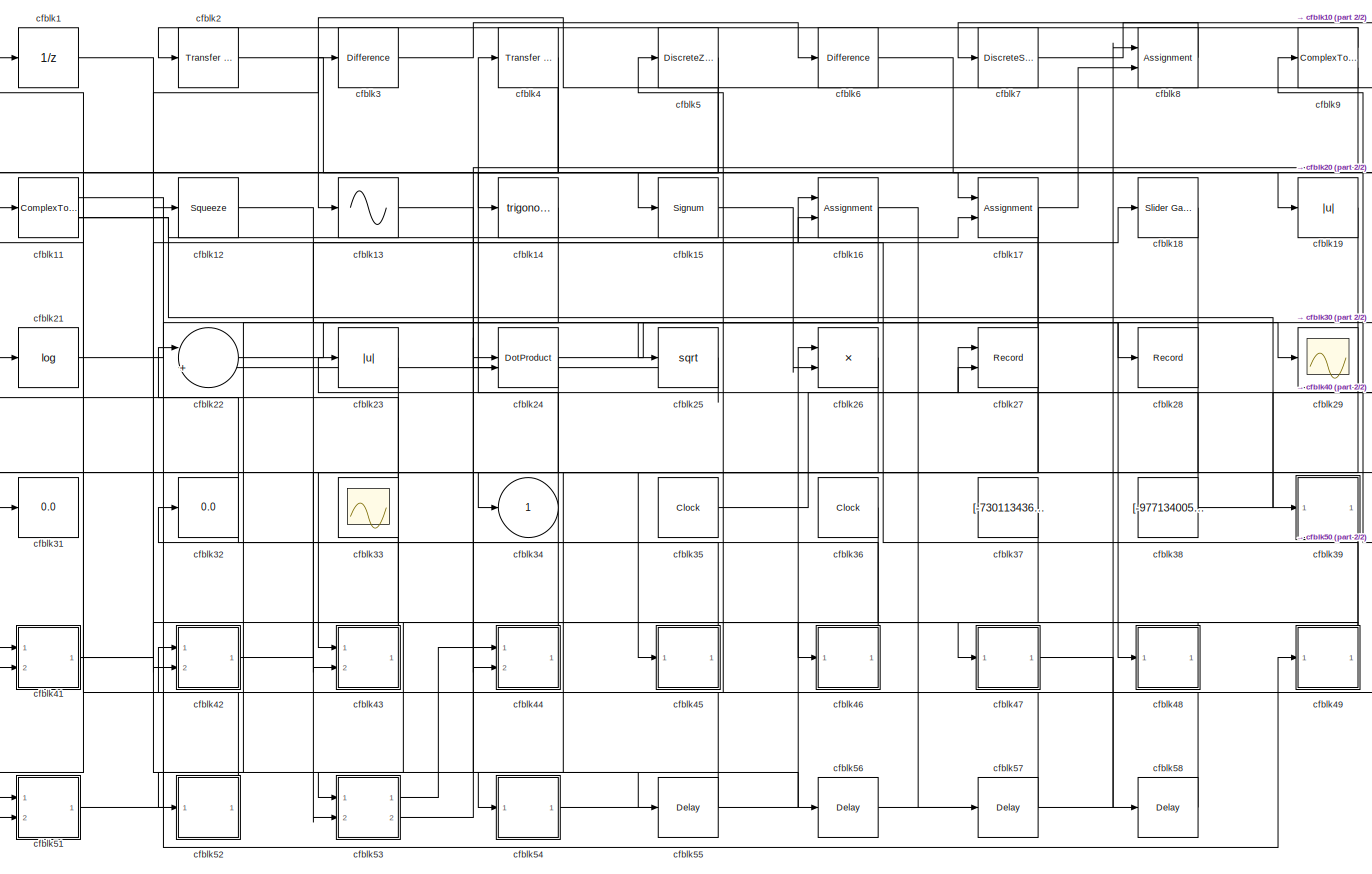
[diagram: root canvas - part 1/2, most of the canvas]
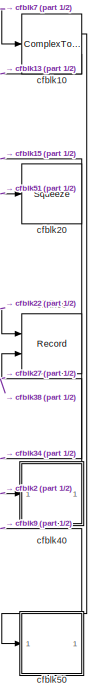
[diagram: root canvas - part 2/2, right side, full height]
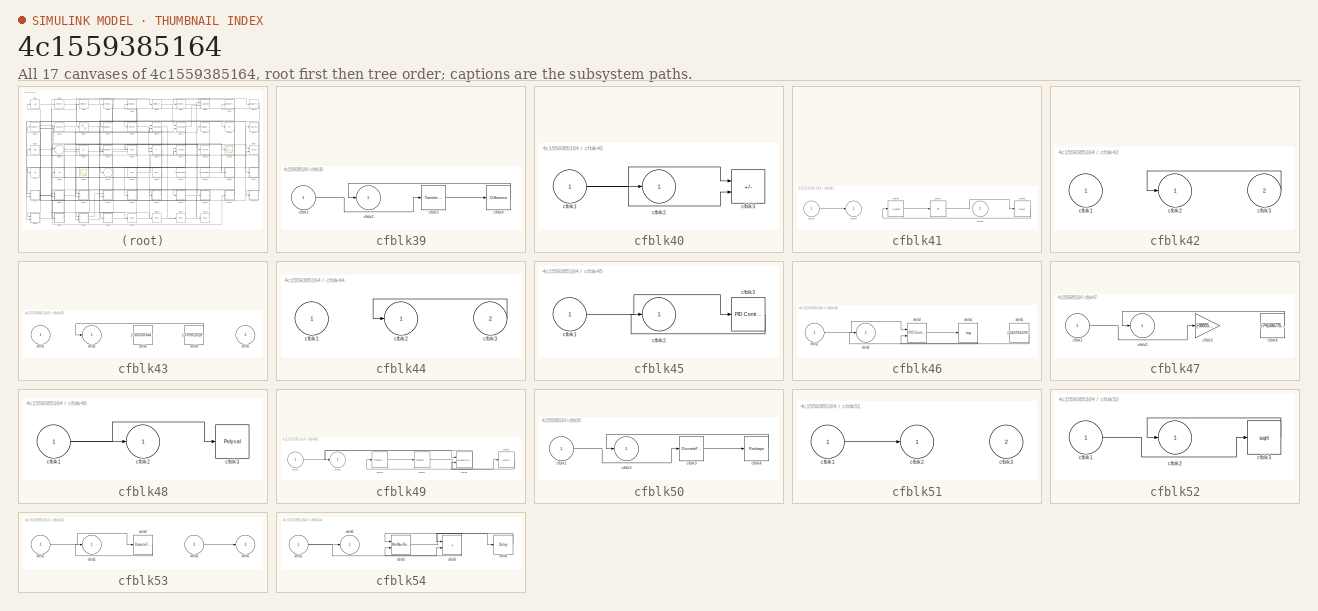
[diagram: thumbnail index - all 17 canvases of the model, root first then tree order]
MODEL slx_4c1559385164
KIND model
CONFIG AbsTol = auto
CONFIG EnableMultiTasking = off
CONFIG FixedStep = auto
CONFIG MaxStep = auto
CONFIG MinStep = auto
CONFIG RelTol = 1e-3
CONFIG SampleTimeConstraint = Unconstrained
CONFIG SolverName = VariableStepAuto
CONFIG StartTime = 0.0
CONFIG StopTime = 10.0
BLOCK [UnitDelay] cfblk1
  HasFrameUpgradeWarning = on
BLOCK [ComplexToMagnitudeAngle] cfblk10
  Ports = [1, 2]
BLOCK [ComplexToRealImag] cfblk11
  Ports = [1, 2]
BLOCK [Squeeze] cfblk12
BLOCK [Sin] cfblk13
  Ports = [1, 1]
  SampleTime = 0
  TimeSource = Use external signal
BLOCK [Trigonometry] cfblk14
  Ports = [1, 1]
BLOCK [Signum] cfblk15
BLOCK [Assignment] cfblk16
  DiagnosticForDimensions = Warning
  IndexOptions = Index vector (dialog)
  Indices = 1
  OutputSizes = 1
  Ports = [2, 1]
BLOCK [Assignment] cfblk17
  DiagnosticForDimensions = Warning
  IndexOptions = Index vector (dialog)
  Indices = 1
  OutputSizes = 1
  Ports = [2, 1]
BLOCK [Reference] cfblk18  REF=simulink/Math
Operations/Slider
Gain
  Ports = [1, 1]
  SourceBlock = simulink/Math\nOperations/Slider\nGain
  SourceProductBaseCode = SL
  SourceType = Slider Gain
BLOCK [Abs] cfblk19
  SaturateOnIntegerOverflow = off
BLOCK [Reference] cfblk2  REF=simulink/Discrete/Transfer Fcn
Real Zero
  Ports = [1, 1]
  SourceBlock = simulink/Discrete/Transfer Fcn\nReal Zero
  SourceProductBaseCode = SL
  SourceType = Transfer Fcn Real Zero
BLOCK [Squeeze] cfblk20
BLOCK [Math] cfblk21
  Operator = log
  Ports = [1, 1]
BLOCK [Sum] cfblk22
  Inputs = |++
  Ports = [2, 1]
BLOCK [Abs] cfblk23
  SaturateOnIntegerOverflow = off
BLOCK [DotProduct] cfblk24
  OutDataTypeStr = Inherit: Inherit via internal rule
BLOCK [Sqrt] cfblk25
BLOCK [Product] cfblk26
  Inputs = **
  Ports = [2, 1]
BLOCK [Record] cfblk27
  CompatibilityTag = XY
  FileSettingsInternal = {"entries":[{"content":{"excelSettings":{"content":{},"type":"Streamout.ExcelSettings"}},"type":"Streamout.FileSettingStorage","uuid":"5f2e5e33-2e7e-4f52-84ca-bc2f10127a33"}],"packageUris":["http://schema.mathworks.com/mf0/streamout_blocks/R2020a"],"version":"1.0"}
  Layout = [1 1]
  Ports = [2]
  SignalsInternal = {"entries":[{"content":{"signals":[{"content":{"blockPath":["sampleModel143/cfblk27"],"channel":[],"dimensions":[1],"domain":"sampleModel143/cfblk27","lineColor":"#a2142f","plots":[1],"port":1,"sid":[""],"signalID":5139,"signalName":"cfblk40"},"type":"RecordBlkView.Signal","uuid":"a825d7f5-e084-43ae-92ed-3d345ba5eced"},{"content":{"blockPath":["sampleModel143/cfblk27"],"channel":[],"dimensions":[1...<+383ch>
  VisualizationBindings = {"xyplotplugin":{"info":[{"series":[{"bindingParametersList":[{"parameter":"X-Axis","signalID":5139,"signalName":"cfblk40"},{"parameter":"Y-Axis","signalID":5143,"signalName":"cfblk35"}],"seriesID":55494}],"subplotID":1}]}}
BLOCK [Record] cfblk28
  FileSettingsInternal = {"entries":[{"content":{"excelSettings":{"content":{},"type":"Streamout.ExcelSettings"}},"type":"Streamout.FileSettingStorage","uuid":"592b955c-6c1a-4010-a795-5c568d8f64ab"}],"packageUris":["http://schema.mathworks.com/mf0/streamout_blocks/R2020a"],"version":"1.0"}
  Ports = [1]
  SignalsInternal = {"entries":[{"content":{"signals":[{"content":{"blockPath":["sampleModel143/cfblk28"],"channel":[],"dimensions":[1],"domain":"sampleModel143/cfblk28","lineColor":"#139fff","plots":[1],"port":1,"sid":[""],"signalID":5147,"signalName":"cfblk15"},"type":"RecordBlkView.Signal","uuid":"adb308f3-d4ff-469a-8984-c33c15bf6920"}]},"type":"RecordBlkView.InputSignals","uuid":"c3a7635e-0893-4d51-8ba1-9111f7d57...<+97ch>
  VisualizationBindings = {"sparklinesplugin":{"info":[{"bindingParametersList":[],"subplotID":1}]}}
BLOCK [Scope] cfblk29
  Floating = off
  NumInputPorts = 1
  Ports = [1]
BLOCK [Reference] cfblk3  REF=simulink/Discrete/Difference
  Ports = [1, 1]
  SourceBlock = simulink/Discrete/Difference
  SourceProductBaseCode = SL
  SourceType = Difference
BLOCK [Record] cfblk30
  CompatibilityTag = XY
  FileSettingsInternal = {"entries":[{"content":{"excelSettings":{"content":{},"type":"Streamout.ExcelSettings"}},"type":"Streamout.FileSettingStorage","uuid":"dd589362-2def-43e8-98ce-1fe01ff604ab"}],"packageUris":["http://schema.mathworks.com/mf0/streamout_blocks/R2020a"],"version":"1.0"}
  Layout = [1 1]
  Ports = [2]
  SignalsInternal = {"entries":[{"content":{"signals":[{"content":{"blockPath":["sampleModel143/cfblk30"],"channel":[],"dimensions":[1],"domain":"sampleModel143/cfblk30","lineColor":"#a2142f","plots":[1],"port":1,"sid":[""],"signalID":5151,"signalName":"cfblk22"},"type":"RecordBlkView.Signal","uuid":"c16fe243-c98b-4217-890a-991c832bc302"},{"content":{"blockPath":["sampleModel143/cfblk30"],"channel":[],"dimensions":[1...<+383ch>
  VisualizationBindings = {"xyplotplugin":{"info":[{"series":[{"bindingParametersList":[{"parameter":"X-Axis","signalID":5151,"signalName":"cfblk22"},{"parameter":"Y-Axis","signalID":5155,"signalName":"cfblk38"}],"seriesID":62739}],"subplotID":1}]}}
BLOCK [Display] cfblk31
  Decimation = 1
  Ports = [1]
BLOCK [Display] cfblk32
  Decimation = 1
  Ports = [1]
BLOCK [Scope] cfblk33
  Floating = on
  NumInputPorts = 1
  Ports = []
BLOCK [Outport] cfblk34
BLOCK [Clock] cfblk35
BLOCK [Clock] cfblk36
BLOCK [Constant] cfblk37
  SampleTime = 1
  Value = [-730113436.085616]
BLOCK [Constant] cfblk38
  SampleTime = 1
  Value = [-977134005.325001]
BLOCK [SubSystem] cfblk39
  Ports = [1, 1]
  RequestExecContextInheritance = off
BLOCK [Inport] cfblk39/cfblk1
BLOCK [Outport] cfblk39/cfblk2
BLOCK [Reference] cfblk39/cfblk3  REF=simulink/Discrete/Transfer Fcn
Lead or Lag
  Ports = [1, 1]
  SourceBlock = simulink/Discrete/Transfer Fcn\nLead or Lag
  SourceProductBaseCode = SL
  SourceType = Lead or Lag Compensator
BLOCK [Reference] cfblk39/cfblk4  REF=simulink/Discrete/Difference
  Ports = [1, 1]
  SourceBlock = simulink/Discrete/Difference
  SourceProductBaseCode = SL
  SourceType = Difference
BLOCK [Reference] cfblk4  REF=simulink/Discrete/Transfer Fcn
Real Zero
  Ports = [1, 1]
  SourceBlock = simulink/Discrete/Transfer Fcn\nReal Zero
  SourceProductBaseCode = SL
  SourceType = Transfer Fcn Real Zero
BLOCK [SubSystem] cfblk40
  Ports = [1, 1]
  RequestExecContextInheritance = off
BLOCK [Inport] cfblk40/cfblk1
BLOCK [Outport] cfblk40/cfblk2
BLOCK [Sum] cfblk40/cfblk3
  IconShape = rectangular
  Inputs = -+
  Ports = [2, 1]
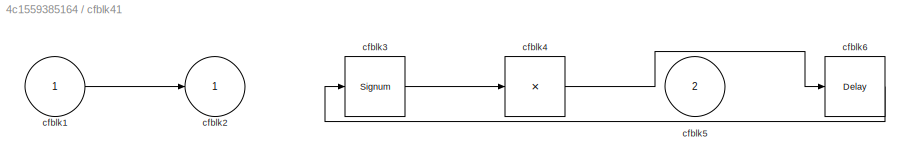
BLOCK [SubSystem] cfblk41
  Ports = [2, 1]
  RequestExecContextInheritance = off
BLOCK [Inport] cfblk41/cfblk1
BLOCK [Outport] cfblk41/cfblk2
BLOCK [Signum] cfblk41/cfblk3
BLOCK [Product] cfblk41/cfblk4
  Inputs = *
  Ports = [1, 1]
BLOCK [Inport] cfblk41/cfblk5
  Port = 2
BLOCK [Delay] cfblk41/cfblk6
  InputPortMap = u0
  Ports = [1, 1]
  SampleTime = 1
BLOCK [SubSystem] cfblk42
  Ports = [2, 1]
  RequestExecContextInheritance = off
BLOCK [Inport] cfblk42/cfblk1
BLOCK [Outport] cfblk42/cfblk2
BLOCK [Inport] cfblk42/cfblk3
  Port = 2
BLOCK [SubSystem] cfblk43
  Ports = [2, 1]
  RequestExecContextInheritance = off
BLOCK [Inport] cfblk43/cfblk1
BLOCK [Outport] cfblk43/cfblk2
BLOCK [Constant] cfblk43/cfblk3
  SampleTime = 1
  Value = [-166500344.595289]
BLOCK [Constant] cfblk43/cfblk4
  SampleTime = 1
  Value = [-370952628.731076]
BLOCK [Inport] cfblk43/cfblk5
  Port = 2
BLOCK [SubSystem] cfblk44
  Ports = [2, 1]
  RequestExecContextInheritance = off
BLOCK [Inport] cfblk44/cfblk1
BLOCK [Outport] cfblk44/cfblk2
BLOCK [Inport] cfblk44/cfblk3
  Port = 2
BLOCK [SubSystem] cfblk45
  Ports = [1, 1]
  RequestExecContextInheritance = off
BLOCK [Inport] cfblk45/cfblk1
BLOCK [Outport] cfblk45/cfblk2
BLOCK [Reference] cfblk45/cfblk3  REF=slpidlib/PID Controller
  Ports = [1, 1]
  SourceBlock = slpidlib/PID Controller
  SourceProductBaseCode = SL
  SourceType = PID 1dof
BLOCK [SubSystem] cfblk46
  Ports = [1, 1]
  RequestExecContextInheritance = off
BLOCK [Inport] cfblk46/cfblk1
BLOCK [Outport] cfblk46/cfblk2
BLOCK [Reference] cfblk46/cfblk3  REF=slpidlib/PID Controller (2DOF)
  Ports = [2, 1]
  SourceBlock = slpidlib/PID Controller (2DOF)
  SourceProductBaseCode = SL
  SourceType = PID 2dof
BLOCK [Math] cfblk46/cfblk4
  Operator = log
  Ports = [1, 1]
BLOCK [Constant] cfblk46/cfblk5
  SampleTime = 1
  Value = [-543761478.223902]
BLOCK [SubSystem] cfblk47
  Ports = [1, 1]
  RequestExecContextInheritance = off
BLOCK [Inport] cfblk47/cfblk1
BLOCK [Outport] cfblk47/cfblk2
BLOCK [Gain] cfblk47/cfblk3
  Gain = [-888552525.683789]
BLOCK [Constant] cfblk47/cfblk4
  SampleTime = 1
  Value = [-741096776.320350]
BLOCK [SubSystem] cfblk48
  Ports = [1, 1]
  RequestExecContextInheritance = off
BLOCK [Inport] cfblk48/cfblk1
BLOCK [Outport] cfblk48/cfblk2
BLOCK [Polyval] cfblk48/cfblk3
  Coefs = [ +2.081618890e-019, -1.441693666e-014, +4.719686976e-010, -8.536869453e-006, +1.621573104e-001, -8.087801117e+001 ]
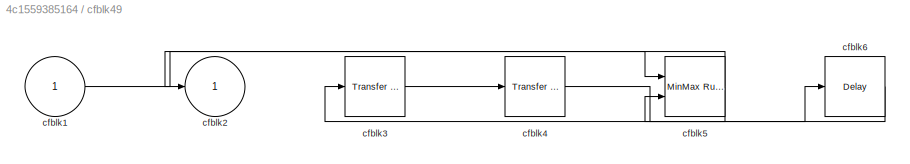
BLOCK [SubSystem] cfblk49
  Ports = [1, 1]
  RequestExecContextInheritance = off
BLOCK [Inport] cfblk49/cfblk1
BLOCK [Outport] cfblk49/cfblk2
BLOCK [Reference] cfblk49/cfblk3  REF=simulink/Discrete/Transfer Fcn
Lead or Lag
  Ports = [1, 1]
  SourceBlock = simulink/Discrete/Transfer Fcn\nLead or Lag
  SourceProductBaseCode = SL
  SourceType = Lead or Lag Compensator
BLOCK [Reference] cfblk49/cfblk4  REF=simulink/Discrete/Transfer Fcn
Real Zero
  Ports = [1, 1]
  SourceBlock = simulink/Discrete/Transfer Fcn\nReal Zero
  SourceProductBaseCode = SL
  SourceType = Transfer Fcn Real Zero
BLOCK [Reference] cfblk49/cfblk5  REF=simulink/Math
Operations/MinMax
Running
Resettable
  Ports = [2, 1]
  SourceBlock = simulink/Math\nOperations/MinMax\nRunning\nResettable
  SourceProductBaseCode = SL
  SourceType = MinMax Running Resettable
BLOCK [Delay] cfblk49/cfblk6
  InputPortMap = u0
  Ports = [1, 1]
  SampleTime = 1
BLOCK [DiscreteZeroPole] cfblk5
  Gain = 1
  Poles = [0 0.5]
BLOCK [SubSystem] cfblk50
  Ports = [1, 1]
  RequestExecContextInheritance = off
BLOCK [Inport] cfblk50/cfblk1
BLOCK [Outport] cfblk50/cfblk2
BLOCK [DiscreteFilter] cfblk50/cfblk3
  InputPortMap = u0
  Ports = [1, 1]
  SampleTime = 1
BLOCK [Reshape] cfblk50/cfblk4
  Ports = [1, 1]
BLOCK [SubSystem] cfblk51
  Ports = [2, 1]
  RequestExecContextInheritance = off
BLOCK [Inport] cfblk51/cfblk1
BLOCK [Outport] cfblk51/cfblk2
BLOCK [Inport] cfblk51/cfblk3
  Port = 2
BLOCK [SubSystem] cfblk52
  Ports = [1, 1]
  RequestExecContextInheritance = off
BLOCK [Inport] cfblk52/cfblk1
BLOCK [Outport] cfblk52/cfblk2
BLOCK [Sqrt] cfblk52/cfblk3
BLOCK [SubSystem] cfblk53
  Ports = [2, 2]
  RequestExecContextInheritance = off
BLOCK [Inport] cfblk53/cfblk1
BLOCK [Outport] cfblk53/cfblk2
BLOCK [DiscreteFir] cfblk53/cfblk3
  InputPortMap = u0
  OutputPortMap = o0
  Ports = [1, 1]
  SampleTime = 1
BLOCK [Inport] cfblk53/cfblk4
  Port = 2
BLOCK [Outport] cfblk53/cfblk5
  Port = 2
BLOCK [SubSystem] cfblk54
  Ports = [1, 1]
  RequestExecContextInheritance = off
BLOCK [Inport] cfblk54/cfblk1
BLOCK [Outport] cfblk54/cfblk2
BLOCK [Reference] cfblk54/cfblk3  REF=simulink/Math
Operations/MinMax
Running
Resettable
  Ports = [2, 1]
  SourceBlock = simulink/Math\nOperations/MinMax\nRunning\nResettable
  SourceProductBaseCode = SL
  SourceType = MinMax Running Resettable
BLOCK [Sum] cfblk54/cfblk4
  IconShape = rectangular
  Ports = [2, 1]
BLOCK [Delay] cfblk54/cfblk5
  InputPortMap = u0
  Ports = [1, 1]
  SampleTime = 1
BLOCK [Delay] cfblk55
  InputPortMap = u0
  Ports = [1, 1]
  SampleTime = 1
BLOCK [Delay] cfblk56
  InputPortMap = u0
  Ports = [1, 1]
  SampleTime = 1
BLOCK [Delay] cfblk57
  InputPortMap = u0
  Ports = [1, 1]
  SampleTime = 1
BLOCK [Delay] cfblk58
  InputPortMap = u0
  Ports = [1, 1]
  SampleTime = 1
BLOCK [Reference] cfblk6  REF=simulink/Discrete/Difference
  Ports = [1, 1]
  SourceBlock = simulink/Discrete/Difference
  SourceProductBaseCode = SL
  SourceType = Difference
BLOCK [DiscreteStateSpace] cfblk7
BLOCK [Assignment] cfblk8
  DiagnosticForDimensions = Warning
  IndexOptions = Index vector (dialog)
  Indices = 1
  OutputSizes = 1
  Ports = [2, 1]
BLOCK [ComplexToRealImag] cfblk9
  Ports = [1, 2]
LINE cfblk10:1 -> cfblk50:1
LINE cfblk10:2 -> cfblk13:1
LINE cfblk11:1 -> cfblk49:1
NET cfblk11:2 -> cfblk17:2, cfblk39:1
LINE cfblk12:1 -> cfblk26:2
LINE cfblk13:1 -> cfblk56:1
LINE cfblk14:1 -> cfblk52:1
LINE cfblk15:1 -> cfblk28:1
NET cfblk16:1 -> cfblk25:1, cfblk57:1
NET cfblk17:1 -> cfblk43:1, cfblk54:1, cfblk8:2
LINE cfblk18:1 -> cfblk43:2
LINE cfblk19:1 -> cfblk45:1
LINE cfblk1:1 -> cfblk12:1
NET cfblk20:1 -> cfblk15:1, cfblk34:1
LINE cfblk21:1 -> cfblk29:1
LINE cfblk22:1 -> cfblk30:1
LINE cfblk23:1 -> cfblk42:2
NET cfblk24:1 -> cfblk31:1, cfblk48:1
LINE cfblk25:1 -> cfblk22:2
LINE cfblk26:1 -> cfblk41:1
LINE cfblk2:1 -> cfblk40:1
LINE cfblk35:1 -> cfblk27:2
LINE cfblk36:1 -> cfblk53:2
LINE cfblk37:1 -> cfblk44:2
NET cfblk38:1 -> cfblk23:1, cfblk30:2
LINE cfblk39/cfblk1:1 -> cfblk39/cfblk3:1
LINE cfblk39/cfblk3:1 -> cfblk39/cfblk4:1
LINE cfblk39/cfblk4:1 -> cfblk39/cfblk2:1
LINE cfblk39:1 -> cfblk53:1
LINE cfblk3:1 -> cfblk6:1
NET cfblk40/cfblk1:1 -> cfblk40/cfblk2:1, cfblk40/cfblk3:1, cfblk40/cfblk3:2
LINE cfblk40:1 -> cfblk27:1
LINE cfblk41/cfblk1:1 -> cfblk41/cfblk2:1
LINE cfblk41/cfblk3:1 -> cfblk41/cfblk4:1
LINE cfblk41/cfblk4:1 -> cfblk41/cfblk6:1
LINE cfblk41/cfblk6:1 -> cfblk41/cfblk3:1
NET cfblk41:1 -> cfblk18:1, cfblk3:1, cfblk55:1
LINE cfblk42/cfblk3:1 -> cfblk42/cfblk2:1
LINE cfblk42:1 -> cfblk16:2
LINE cfblk43/cfblk4:1 -> cfblk43/cfblk2:1
LINE cfblk43:1 -> cfblk21:1
LINE cfblk44/cfblk3:1 -> cfblk44/cfblk2:1
LINE cfblk44:1 -> cfblk4:1
LINE cfblk45/cfblk1:1 -> cfblk45/cfblk3:1
LINE cfblk45/cfblk3:1 -> cfblk45/cfblk2:1
LINE cfblk45:1 -> cfblk22:1
LINE cfblk46/cfblk1:1 -> cfblk46/cfblk3:1
LINE cfblk46/cfblk3:1 -> cfblk46/cfblk4:1
LINE cfblk46/cfblk4:1 -> cfblk46/cfblk2:1
LINE cfblk46/cfblk5:1 -> cfblk46/cfblk3:2
LINE cfblk46:1 -> cfblk32:1
LINE cfblk47/cfblk1:1 -> cfblk47/cfblk3:1
LINE cfblk47/cfblk4:1 -> cfblk47/cfblk2:1
LINE cfblk47:1 -> cfblk58:1
NET cfblk48/cfblk1:1 -> cfblk48/cfblk2:1, cfblk48/cfblk3:1
LINE cfblk48:1 -> cfblk46:1
LINE cfblk49/cfblk1:1 -> cfblk49/cfblk5:1
LINE cfblk49/cfblk3:1 -> cfblk49/cfblk4:1
LINE cfblk49/cfblk4:1 -> cfblk49/cfblk6:1
NET cfblk49/cfblk5:1 -> cfblk49/cfblk2:1, cfblk49/cfblk3:1
LINE cfblk49/cfblk6:1 -> cfblk49/cfblk5:2
NET cfblk49:1 -> cfblk16:1, cfblk47:1
NET cfblk4:1 -> cfblk17:1, cfblk41:2, cfblk51:1
LINE cfblk50/cfblk1:1 -> cfblk50/cfblk3:1
LINE cfblk50/cfblk3:1 -> cfblk50/cfblk4:1
LINE cfblk50/cfblk4:1 -> cfblk50/cfblk2:1
LINE cfblk50:1 -> cfblk9:1
LINE cfblk51/cfblk1:1 -> cfblk51/cfblk2:1
LINE cfblk51:1 -> cfblk20:1
LINE cfblk52/cfblk1:1 -> cfblk52/cfblk3:1
LINE cfblk52/cfblk3:1 -> cfblk52/cfblk2:1
LINE cfblk52:1 -> cfblk42:1
LINE cfblk53/cfblk1:1 -> cfblk53/cfblk3:1
LINE cfblk53/cfblk3:1 -> cfblk53/cfblk2:1
LINE cfblk53/cfblk4:1 -> cfblk53/cfblk5:1
LINE cfblk53:1 -> cfblk44:1
LINE cfblk53:2 -> cfblk24:1
NET cfblk54/cfblk1:1 -> cfblk54/cfblk2:1, cfblk54/cfblk4:2
LINE cfblk54/cfblk3:1 -> cfblk54/cfblk5:1
NET cfblk54/cfblk4:1 -> cfblk54/cfblk3:1, cfblk54/cfblk3:2
LINE cfblk54/cfblk5:1 -> cfblk54/cfblk4:1
LINE cfblk54:1 -> cfblk26:1
LINE cfblk55:1 -> cfblk1:1
LINE cfblk56:1 -> cfblk8:1
LINE cfblk57:1 -> cfblk5:1
LINE cfblk58:1 -> cfblk11:1
NET cfblk5:1 -> cfblk14:1, cfblk51:2
LINE cfblk6:1 -> cfblk19:1
LINE cfblk7:1 -> cfblk10:1
LINE cfblk8:1 -> cfblk7:1
LINE cfblk9:1 -> cfblk2:1
LINE cfblk9:2 -> cfblk24:2
note: NET lines group one-source signal fan-out (src -> all destinations, sorted); 1:1 wires keep LINE
